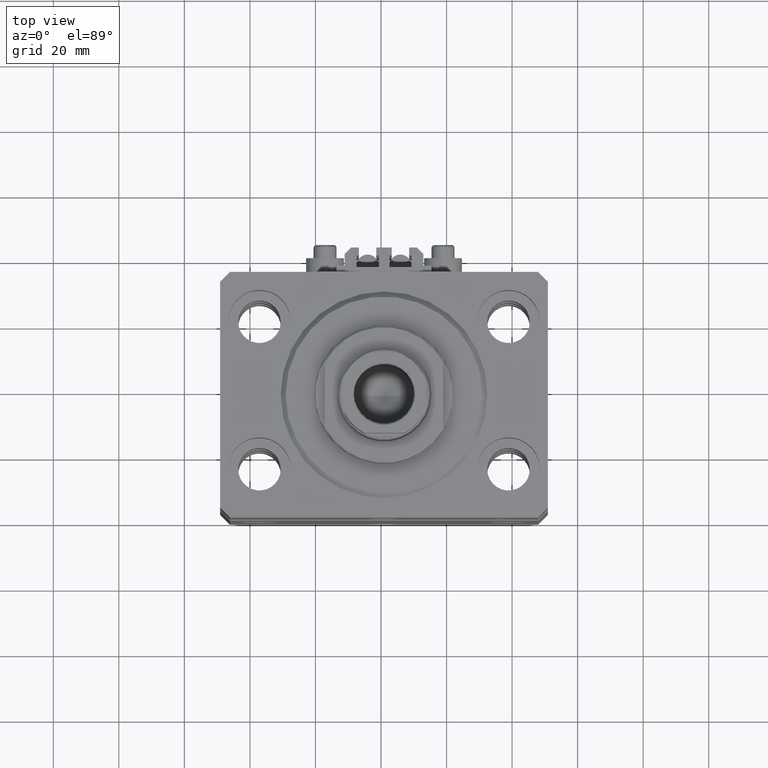
[diagram: clean part render]
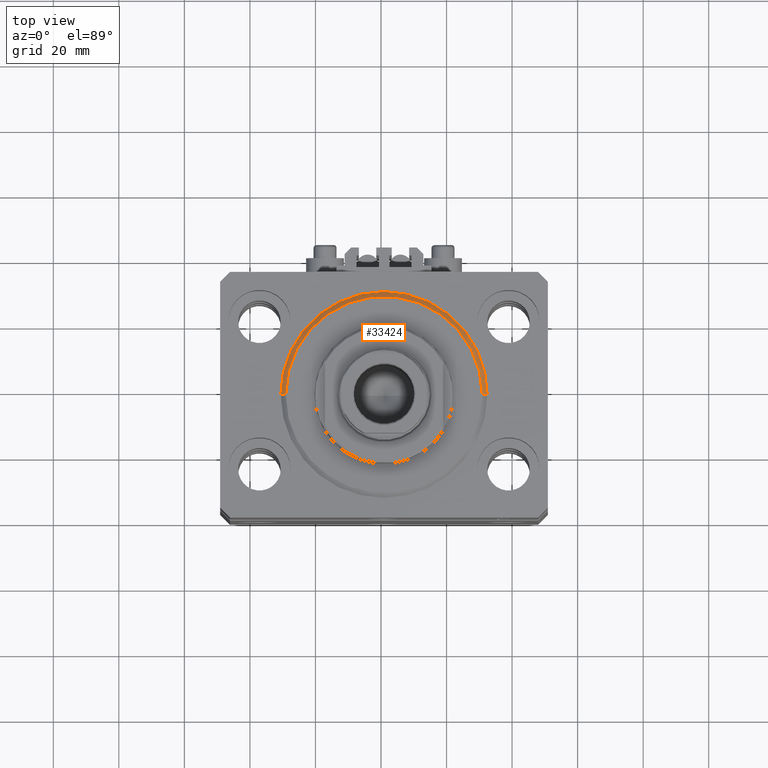
[diagram: same view with one face highlighted and labeled with its STEP entity id]
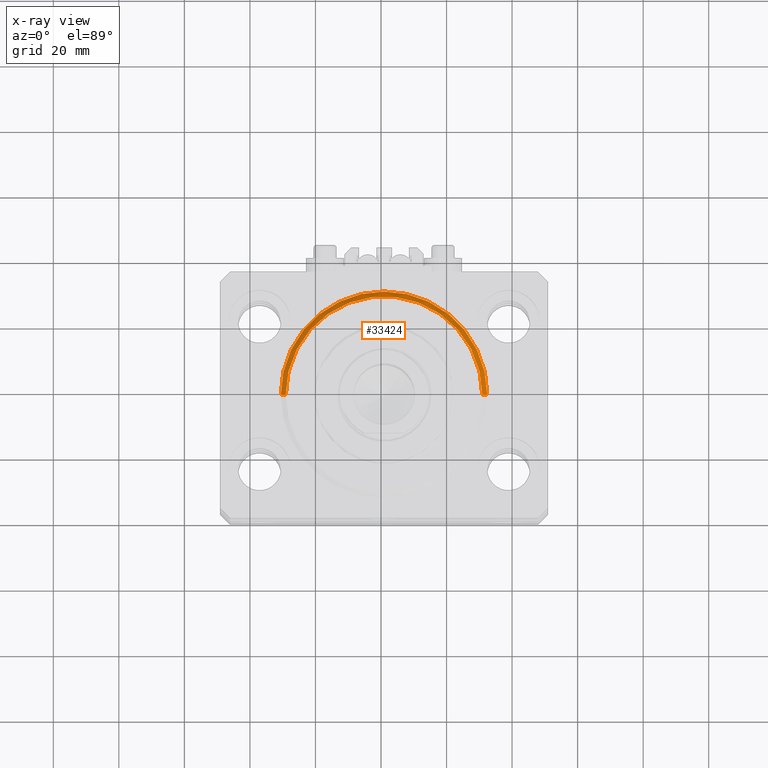
[diagram: x-ray of the same camera — body ghosted, the highlighted face saturated]
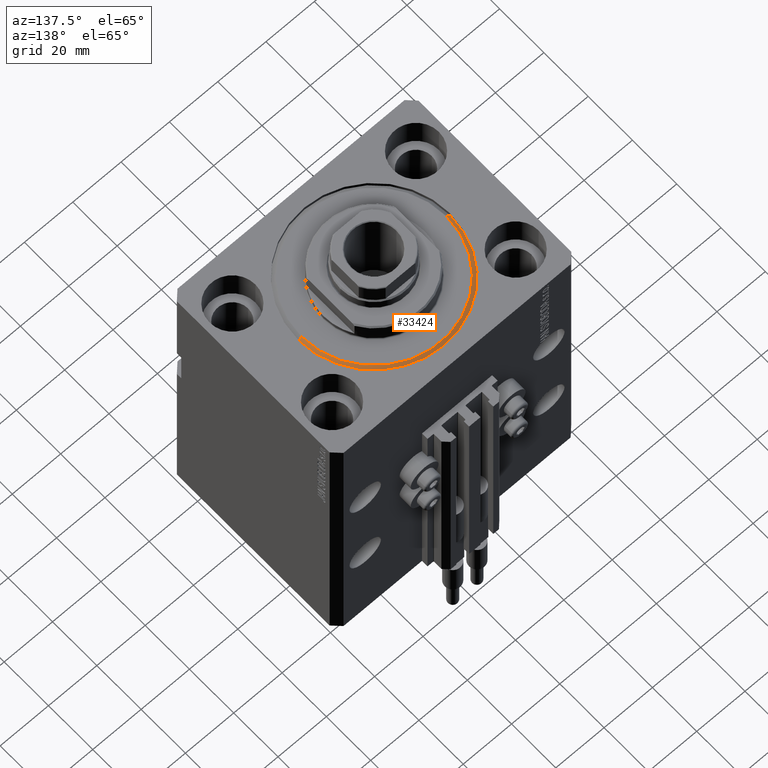
[diagram: same view with one face highlighted and labeled with its STEP entity id]
A machine part, top view. The second image highlights one B-rep face of the part: STEP entity #33424.
The next image is the same camera in x-ray: the body ghosted, the highlighted face saturated — about 0% of this face is hidden behind the body in this view.
A second angle (auxiliary view) of the same face is appended — the face is thin or edge-on in the first view.
In plain terms, the highlighted conical surface has half-angle 45 deg.
Its self-contained STEP definition (entity closure, byte-faithful):
#840 = CARTESIAN_POINT ( 'NONE',  ( 31.50000000000000000, 0.000000000000000000, 1.500000000000001332 ) ) ;
#917 = AXIS2_PLACEMENT_3D ( 'NONE', #39420, #21503, #40309 ) ;
#1611 = DIRECTION ( 'NONE',  ( -0.000000000000000000, -0.000000000000000000, -1.000000000000000000 ) ) ;
#1658 = ORIENTED_EDGE ( 'NONE', *, *, #47682, .T. ) ;
#2837 = CARTESIAN_POINT ( 'NONE',  ( -31.50000000000000000, 0.000000000000000000, 1.500000000000001332 ) ) ;
#4044 = VECTOR ( 'NONE', #18158, 1000.000000000000000 ) ;
#4299 = CARTESIAN_POINT ( 'NONE',  ( -29.99999999999999289, 3.765788907378110539E-15, 0.000000000000000000 ) ) ;
#4496 = DIRECTION ( 'NONE',  ( 1.000000000000000000, 0.000000000000000000, 0.000000000000000000 ) ) ;
#4908 = ORIENTED_EDGE ( 'NONE', *, *, #19774, .F. ) ;
#8517 = DIRECTION ( 'NONE',  ( 0.7071067811865491270, 0.000000000000000000, 0.7071067811865459074 ) ) ;
#12753 = CARTESIAN_POINT ( 'NONE',  ( 31.50000000000000000, 3.857637417314162689E-15, 1.500000000000001332 ) ) ;
#13497 = DIRECTION ( 'NONE',  ( 1.000000000000000000, 0.000000000000000000, 0.000000000000000000 ) ) ;
#14547 = EDGE_CURVE ( 'NONE', #45482, #16816, #38922, .T. ) ;
#16816 = VERTEX_POINT ( 'NONE', #2837 ) ;
#17035 = VERTEX_POINT ( 'NONE', #4299 ) ;
#18158 = DIRECTION ( 'NONE',  ( -0.7071067811865491270, 8.659560562354952580E-17, 0.7071067811865459074 ) ) ;
#19138 = FACE_OUTER_BOUND ( 'NONE', #32272, .T. ) ;
#19774 = EDGE_CURVE ( 'NONE', #17035, #33968, #34213, .T. ) ;
#20475 = CARTESIAN_POINT ( 'NONE',  ( 0.000000000000000000, 0.000000000000000000, 0.000000000000000000 ) ) ;
#21141 = CONICAL_SURFACE ( 'NONE', #32968, 31.50000000000000000, 0.7853981633974506105 ) ;
#21270 = VECTOR ( 'NONE', #8517, 1000.000000000000000 ) ;
#21503 = DIRECTION ( 'NONE',  ( -0.000000000000000000, -0.000000000000000000, 1.000000000000000000 ) ) ;
#22618 = LINE ( 'NONE', #37476, #4044 ) ;
#23149 = AXIS2_PLACEMENT_3D ( 'NONE', #20475, #1611, #13497 ) ;
#32114 = ORIENTED_EDGE ( 'NONE', *, *, #14547, .F. ) ;
#32272 = EDGE_LOOP ( 'NONE', ( #4908, #1658, #32114, #47192 ) ) ;
#32968 = AXIS2_PLACEMENT_3D ( 'NONE', #37718, #34240, #4496 ) ;
#33424 = ADVANCED_FACE ( 'NONE', ( #19138 ), #21141, .T. ) ;
#33968 = VERTEX_POINT ( 'NONE', #35289 ) ;
#34213 = CIRCLE ( 'NONE', #23149, 29.99999999999999289 ) ;
#34240 = DIRECTION ( 'NONE',  ( -0.000000000000000000, -0.000000000000000000, 1.000000000000000000 ) ) ;
#35289 = CARTESIAN_POINT ( 'NONE',  ( 29.99999999999999289, 0.000000000000000000, 0.000000000000000000 ) ) ;
#36941 = EDGE_CURVE ( 'NONE', #33968, #45482, #38523, .T. ) ;
#37476 = CARTESIAN_POINT ( 'NONE',  ( -31.50000000000000000, 3.857637417314162689E-15, 1.500000000000001332 ) ) ;
#37718 = CARTESIAN_POINT ( 'NONE',  ( 0.000000000000000000, 0.000000000000000000, 1.500000000000001332 ) ) ;
#38523 = LINE ( 'NONE', #840, #21270 ) ;
#38922 = CIRCLE ( 'NONE', #917, 31.50000000000000000 ) ;
#39420 = CARTESIAN_POINT ( 'NONE',  ( 0.000000000000000000, 0.000000000000000000, 1.500000000000001332 ) ) ;
#40309 = DIRECTION ( 'NONE',  ( 1.000000000000000000, 0.000000000000000000, 0.000000000000000000 ) ) ;
#45482 = VERTEX_POINT ( 'NONE', #12753 ) ;
#47192 = ORIENTED_EDGE ( 'NONE', *, *, #36941, .F. ) ;
#47682 = EDGE_CURVE ( 'NONE', #17035, #16816, #22618, .T. ) ;